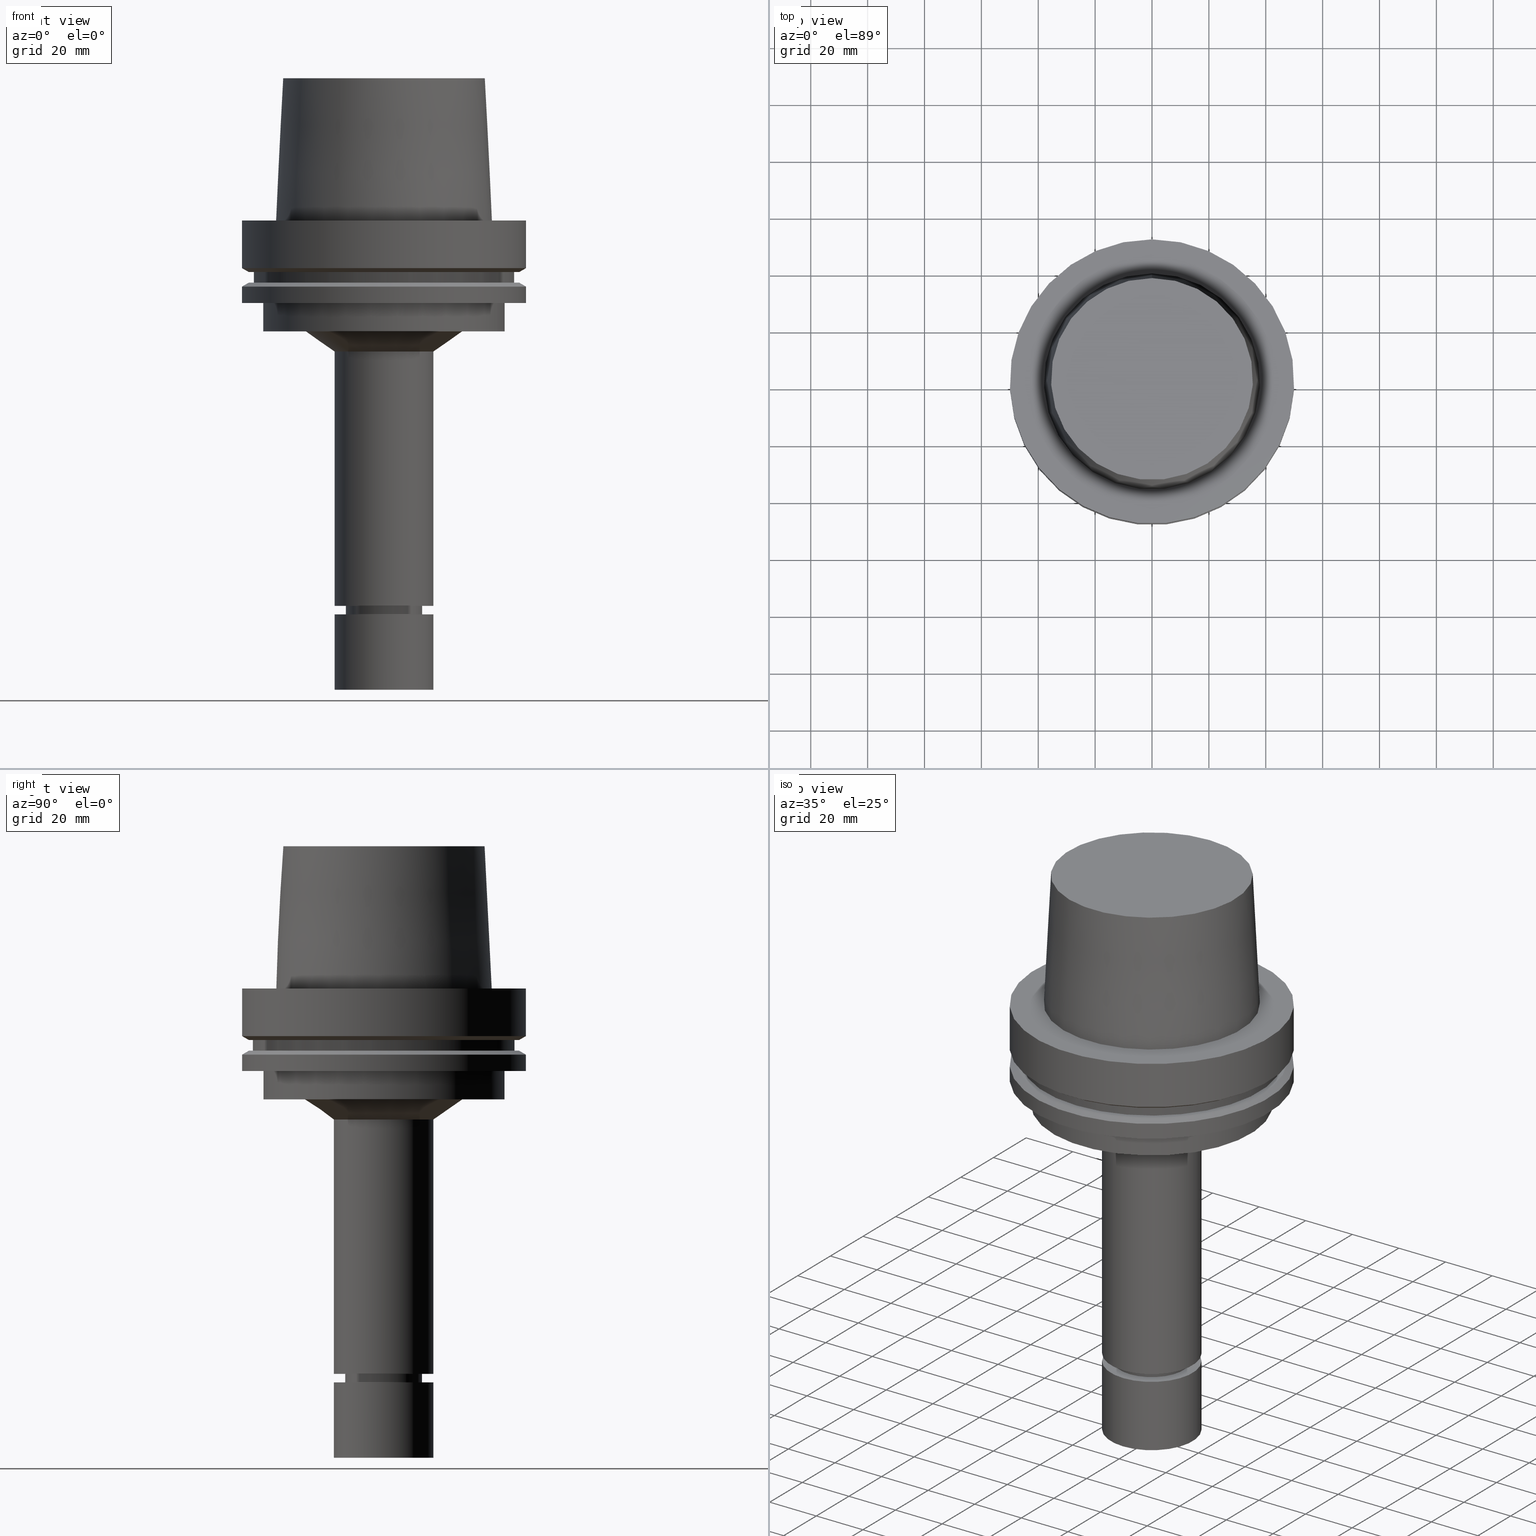
[diagram: canonical four-view strip — front | top / right | iso, engineering-drawing reading convention]
A machine part, canonical four-view strip (front | top / right | iso — engineering-drawing reading convention). The complete STEP part file that produces these views, byte-faithful:
ISO-10303-21;
HEADER;
FILE_DESCRIPTION((''),'1');
FILE_NAME('V:/90_\X2\53D65F9730C730FC30BF\X0\/00_\X2\6DE18DEF30C730FC30BF\X0\/ALL/HSK-BKUS\X2\52A05DE556F3\X0\_201801/HSK-A100-MEGAER/HSK-A100-MEGAER20-165NL.stp','2018-02-01T04:13:18',(''),(''),'Spatial Interop R21 SP3','Kubotek KeyCreator 2011 V10.0.2 (22737)',' ');
FILE_SCHEMA(('automotive_design'));
ENDSEC;
DATA;
#1=MECHANICAL_DESIGN_GEOMETRIC_PRESENTATION_REPRESENTATION(' ',(#14,#15,#16,#17,#18,#19,#20,#21,#22,#23,#24,#25,#26,#27,#28,#29,#30,#31,#32,#33,#34,#35,#36,#37,#38,#39,#40,#41,#42,#43,#44,#45,#46,#47,#48,#49,#50,#51,#52,#53,#54,#55,#56,#57,#58,#59,#60,#61),#10);
#2=PRODUCT_DEFINITION_CONTEXT('',#62,'design');
#3=APPLICATION_PROTOCOL_DEFINITION('INTERNATIONAL STANDARD','automotive_design',1994,#62);
#4=PRODUCT_CATEGORY_RELATIONSHIP('NONE','NONE',#63,#64);
#5=SHAPE_DEFINITION_REPRESENTATION(#65,#66);
#6=PRODUCT_DEFINITION_CONTEXT('',#67,'design');
#7=APPLICATION_PROTOCOL_DEFINITION('INTERNATIONAL STANDARD','automotive_design',1994,#67);
#8=PRODUCT_CATEGORY_RELATIONSHIP('NONE','NONE',#68,#69);
#9=SHAPE_DEFINITION_REPRESENTATION(#70,#71);
#10= (GEOMETRIC_REPRESENTATION_CONTEXT(3)GLOBAL_UNCERTAINTY_ASSIGNED_CONTEXT((#74))GLOBAL_UNIT_ASSIGNED_CONTEXT((#76,#77,#78))REPRESENTATION_CONTEXT('NONE','WORKSPACE'));
#14=STYLED_ITEM('',(#80,#81),#82);
#15=STYLED_ITEM('',(#83),#84);
#16=STYLED_ITEM('',(#85,#86),#87);
#17=STYLED_ITEM('',(#88),#89);
#18=STYLED_ITEM('',(#90,#91),#92);
#19=STYLED_ITEM('',(#93,#94),#95);
#20=STYLED_ITEM('',(#96,#97),#98);
#21=STYLED_ITEM('',(#99,#100),#101);
#22=STYLED_ITEM('',(#102),#103);
#23=STYLED_ITEM('',(#104,#105),#106);
#24=STYLED_ITEM('',(#107),#108);
#25=STYLED_ITEM('',(#109),#110);
#26=STYLED_ITEM('',(#111,#112),#113);
#27=STYLED_ITEM('',(#114),#115);
#28=STYLED_ITEM('',(#116,#117),#118);
#29=STYLED_ITEM('',(#119),#120);
#30=STYLED_ITEM('',(#121),#122);
#31=STYLED_ITEM('',(#123,#124),#125);
#32=STYLED_ITEM('',(#126),#127);
#33=STYLED_ITEM('',(#128,#129),#130);
#34=STYLED_ITEM('',(#131,#132),#133);
#35=STYLED_ITEM('',(#134,#135),#136);
#36=STYLED_ITEM('',(#137),#138);
#37=STYLED_ITEM('',(#139),#140);
#38=STYLED_ITEM('',(#141),#142);
#39=STYLED_ITEM('',(#143,#144),#145);
#40=STYLED_ITEM('',(#146,#147),#148);
#41=STYLED_ITEM('',(#149),#150);
#42=STYLED_ITEM('',(#151),#152);
#43=STYLED_ITEM('',(#153,#154),#155);
#44=STYLED_ITEM('',(#156,#157),#158);
#45=STYLED_ITEM('',(#159),#160);
#46=STYLED_ITEM('',(#161,#162),#163);
#47=STYLED_ITEM('',(#164,#165),#166);
#48=STYLED_ITEM('',(#167),#168);
#49=STYLED_ITEM('',(#169,#170),#171);
#50=STYLED_ITEM('',(#172,#173),#174);
#51=STYLED_ITEM('',(#175),#176);
#52=STYLED_ITEM('',(#177,#178),#179);
#53=STYLED_ITEM('',(#180,#181),#182);
#54=STYLED_ITEM('',(#183,#184),#185);
#55=STYLED_ITEM('',(#186,#187),#188);
#56=STYLED_ITEM('',(#189),#190);
#57=STYLED_ITEM('',(#191),#192);
#58=STYLED_ITEM('',(#193),#194);
#59=STYLED_ITEM('',(#195),#196);
#60=STYLED_ITEM('',(#197,#198),#199);
#61=STYLED_ITEM('',(#200),#201);
#62=APPLICATION_CONTEXT(' ');
#63=PRODUCT_CATEGORY('part','NONE');
#64=PRODUCT_RELATED_PRODUCT_CATEGORY('detail',' ',(#202));
#65=PRODUCT_DEFINITION_SHAPE('NONE','NONE',#203);
#66=ADVANCED_BREP_SHAPE_REPRESENTATION('Unnamed[1]',(#118,#204),#10);
#67=APPLICATION_CONTEXT(' ');
#68=PRODUCT_CATEGORY('part','NONE');
#69=PRODUCT_RELATED_PRODUCT_CATEGORY('detail',' ',(#205));
#70=PRODUCT_DEFINITION_SHAPE('NONE','NONE',#206);
#71=ADVANCED_BREP_SHAPE_REPRESENTATION('Unnamed[1]',(#101,#207),#10);
#74=UNCERTAINTY_MEASURE_WITH_UNIT(LENGTH_MEASURE(1.0E-006),#76,'','');
#76= (CONVERSION_BASED_UNIT('MILLIMETRE',#210)LENGTH_UNIT()NAMED_UNIT(#213));
#77= (NAMED_UNIT(#215)PLANE_ANGLE_UNIT()SI_UNIT($,.RADIAN.));
#78= (NAMED_UNIT(#215)SOLID_ANGLE_UNIT()SI_UNIT($,.STERADIAN.));
#80=PRESENTATION_STYLE_ASSIGNMENT((#221));
#81=PRESENTATION_STYLE_ASSIGNMENT((#222));
#82=ADVANCED_FACE('Unnamed[1]',(#223,#224),#225,.T.);
#83=PRESENTATION_STYLE_ASSIGNMENT((#226));
#84=EDGE_CURVE('Unnamed[1]',#227,#227,#228,.T.);
#85=PRESENTATION_STYLE_ASSIGNMENT((#229));
#86=PRESENTATION_STYLE_ASSIGNMENT((#230));
#87=ADVANCED_FACE('Unnamed[1]',(#231,#232),#233,.T.);
#88=PRESENTATION_STYLE_ASSIGNMENT((#234));
#89=EDGE_CURVE('Unnamed[1]',#235,#235,#236,.T.);
#90=PRESENTATION_STYLE_ASSIGNMENT((#237));
#91=PRESENTATION_STYLE_ASSIGNMENT((#238));
#92=ADVANCED_FACE('Unnamed[1]',(#239,#240),#241,.T.);
#93=PRESENTATION_STYLE_ASSIGNMENT((#242));
#94=PRESENTATION_STYLE_ASSIGNMENT((#243));
#95=ADVANCED_FACE('Unnamed[1]',(#244,#245),#246,.T.);
#96=PRESENTATION_STYLE_ASSIGNMENT((#247));
#97=PRESENTATION_STYLE_ASSIGNMENT((#248));
#98=ADVANCED_FACE('Unnamed[1]',(#249,#250),#251,.T.);
#99=PRESENTATION_STYLE_ASSIGNMENT((#252));
#100=PRESENTATION_STYLE_ASSIGNMENT((#253));
#101=MANIFOLD_SOLID_BREP('Unnamed[1]',#254);
#102=PRESENTATION_STYLE_ASSIGNMENT((#255));
#103=EDGE_CURVE('Unnamed[1]',#256,#256,#257,.T.);
#104=PRESENTATION_STYLE_ASSIGNMENT((#258));
#105=PRESENTATION_STYLE_ASSIGNMENT((#259));
#106=ADVANCED_FACE('Unnamed[1]',(#260,#261),#262,.T.);
#107=PRESENTATION_STYLE_ASSIGNMENT((#263));
#108=EDGE_CURVE('Unnamed[1]',#264,#264,#265,.T.);
#109=PRESENTATION_STYLE_ASSIGNMENT((#266));
#110=EDGE_CURVE('Unnamed[1]',#267,#267,#268,.T.);
#111=PRESENTATION_STYLE_ASSIGNMENT((#269));
#112=PRESENTATION_STYLE_ASSIGNMENT((#270));
#113=ADVANCED_FACE('Unnamed[1]',(#271,#272),#273,.T.);
#114=PRESENTATION_STYLE_ASSIGNMENT((#274));
#115=EDGE_CURVE('Unnamed[1]',#275,#275,#276,.T.);
#116=PRESENTATION_STYLE_ASSIGNMENT((#277));
#117=PRESENTATION_STYLE_ASSIGNMENT((#278));
#118=MANIFOLD_SOLID_BREP('Unnamed[1]',#279);
#119=PRESENTATION_STYLE_ASSIGNMENT((#280));
#120=EDGE_CURVE('Unnamed[1]',#281,#281,#282,.T.);
#121=PRESENTATION_STYLE_ASSIGNMENT((#283));
#122=EDGE_CURVE('Unnamed[1]',#284,#284,#285,.T.);
#123=PRESENTATION_STYLE_ASSIGNMENT((#286));
#124=PRESENTATION_STYLE_ASSIGNMENT((#287));
#125=ADVANCED_FACE('Unnamed[1]',(#288,#289),#290,.T.);
#126=PRESENTATION_STYLE_ASSIGNMENT((#291));
#127=EDGE_CURVE('Unnamed[1]',#292,#292,#293,.T.);
#128=PRESENTATION_STYLE_ASSIGNMENT((#294));
#129=PRESENTATION_STYLE_ASSIGNMENT((#295));
#130=ADVANCED_FACE('Unnamed[1]',(#296,#297),#298,.T.);
#131=PRESENTATION_STYLE_ASSIGNMENT((#299));
#132=PRESENTATION_STYLE_ASSIGNMENT((#300));
#133=ADVANCED_FACE('Unnamed[1]',(#301),#302,.T.);
#134=PRESENTATION_STYLE_ASSIGNMENT((#303));
#135=PRESENTATION_STYLE_ASSIGNMENT((#304));
#136=ADVANCED_FACE('Unnamed[1]',(#305),#306,.T.);
#137=PRESENTATION_STYLE_ASSIGNMENT((#307));
#138=EDGE_CURVE('Unnamed[1]',#308,#308,#309,.T.);
#139=PRESENTATION_STYLE_ASSIGNMENT((#310));
#140=EDGE_CURVE('Unnamed[1]',#311,#311,#312,.T.);
#141=PRESENTATION_STYLE_ASSIGNMENT((#313));
#142=EDGE_CURVE('Unnamed[1]',#314,#314,#315,.T.);
#143=PRESENTATION_STYLE_ASSIGNMENT((#316));
#144=PRESENTATION_STYLE_ASSIGNMENT((#317));
#145=ADVANCED_FACE('Unnamed[1]',(#318),#319,.T.);
#146=PRESENTATION_STYLE_ASSIGNMENT((#320));
#147=PRESENTATION_STYLE_ASSIGNMENT((#321));
#148=ADVANCED_FACE('Unnamed[1]',(#322,#323),#324,.T.);
#149=PRESENTATION_STYLE_ASSIGNMENT((#325));
#150=EDGE_CURVE('Unnamed[1]',#326,#326,#327,.T.);
#151=PRESENTATION_STYLE_ASSIGNMENT((#328));
#152=EDGE_CURVE('Unnamed[1]',#329,#329,#330,.T.);
#153=PRESENTATION_STYLE_ASSIGNMENT((#331));
#154=PRESENTATION_STYLE_ASSIGNMENT((#332));
#155=ADVANCED_FACE('Unnamed[1]',(#333,#334),#335,.T.);
#156=PRESENTATION_STYLE_ASSIGNMENT((#336));
#157=PRESENTATION_STYLE_ASSIGNMENT((#337));
#158=ADVANCED_FACE('Unnamed[1]',(#338,#339),#340,.T.);
#159=PRESENTATION_STYLE_ASSIGNMENT((#341));
#160=EDGE_CURVE('Unnamed[1]',#342,#342,#343,.T.);
#161=PRESENTATION_STYLE_ASSIGNMENT((#344));
#162=PRESENTATION_STYLE_ASSIGNMENT((#345));
#163=ADVANCED_FACE('Unnamed[1]',(#346,#347),#348,.T.);
#164=PRESENTATION_STYLE_ASSIGNMENT((#349));
#165=PRESENTATION_STYLE_ASSIGNMENT((#350));
#166=ADVANCED_FACE('Unnamed[1]',(#351,#352),#353,.T.);
#167=PRESENTATION_STYLE_ASSIGNMENT((#354));
#168=EDGE_CURVE('Unnamed[1]',#355,#355,#356,.T.);
#169=PRESENTATION_STYLE_ASSIGNMENT((#357));
#170=PRESENTATION_STYLE_ASSIGNMENT((#358));
#171=ADVANCED_FACE('Unnamed[1]',(#359,#360),#361,.T.);
#172=PRESENTATION_STYLE_ASSIGNMENT((#362));
#173=PRESENTATION_STYLE_ASSIGNMENT((#363));
#174=ADVANCED_FACE('Unnamed[1]',(#364,#365),#366,.T.);
#175=PRESENTATION_STYLE_ASSIGNMENT((#367));
#176=EDGE_CURVE('Unnamed[1]',#368,#368,#369,.T.);
#177=PRESENTATION_STYLE_ASSIGNMENT((#370));
#178=PRESENTATION_STYLE_ASSIGNMENT((#371));
#179=ADVANCED_FACE('Unnamed[1]',(#372,#373),#374,.T.);
#180=PRESENTATION_STYLE_ASSIGNMENT((#375));
#181=PRESENTATION_STYLE_ASSIGNMENT((#376));
#182=ADVANCED_FACE('Unnamed[1]',(#377,#378),#379,.T.);
#183=PRESENTATION_STYLE_ASSIGNMENT((#380));
#184=PRESENTATION_STYLE_ASSIGNMENT((#381));
#185=ADVANCED_FACE('Unnamed[1]',(#382,#383),#384,.T.);
#186=PRESENTATION_STYLE_ASSIGNMENT((#385));
#187=PRESENTATION_STYLE_ASSIGNMENT((#386));
#188=ADVANCED_FACE('Unnamed[1]',(#387),#388,.T.);
#189=PRESENTATION_STYLE_ASSIGNMENT((#389));
#190=EDGE_CURVE('Unnamed[1]',#390,#390,#391,.T.);
#191=PRESENTATION_STYLE_ASSIGNMENT((#392));
#192=EDGE_CURVE('Unnamed[1]',#393,#393,#394,.T.);
#193=PRESENTATION_STYLE_ASSIGNMENT((#395));
#194=EDGE_CURVE('Unnamed[1]',#396,#396,#397,.T.);
#195=PRESENTATION_STYLE_ASSIGNMENT((#398));
#196=EDGE_CURVE('Unnamed[1]',#399,#399,#400,.T.);
#197=PRESENTATION_STYLE_ASSIGNMENT((#401));
#198=PRESENTATION_STYLE_ASSIGNMENT((#402));
#199=ADVANCED_FACE('Unnamed[1]',(#403,#404),#405,.T.);
#200=PRESENTATION_STYLE_ASSIGNMENT((#406));
#201=EDGE_CURVE('Unnamed[1]',#407,#407,#408,.T.);
#202=PRODUCT('Unnamed[1]','Unnamed[1]','PART-Unnamed[1]-DESC',(#409));
#203=PRODUCT_DEFINITION('NONE','NONE',#410,#2);
#204=AXIS2_PLACEMENT_3D('',#411,#412,#413);
#205=PRODUCT('Unnamed[1]','Unnamed[1]','PART-Unnamed[1]-DESC',(#414));
#206=PRODUCT_DEFINITION('NONE','NONE',#415,#6);
#207=AXIS2_PLACEMENT_3D('',#416,#417,#418);
#210=LENGTH_MEASURE_WITH_UNIT(LENGTH_MEASURE(1.0),#419);
#213=DIMENSIONAL_EXPONENTS(1.0,0.0,0.0,0.0,0.0,0.0,0.0);
#215=DIMENSIONAL_EXPONENTS(0.0,0.0,0.0,0.0,0.0,0.0,0.0);
#221=SURFACE_STYLE_USAGE(.BOTH.,#420);
#222=CURVE_STYLE('',#421,POSITIVE_LENGTH_MEASURE(1000.0),#422);
#223=FACE_BOUND('',#423,.T.);
#224=FACE_BOUND('',#424,.T.);
#225=CONICAL_SURFACE('',#425,48.81129763,1.04719755328238);
#226=CURVE_STYLE('',#426,POSITIVE_LENGTH_MEASURE(1000.0),#427);
#227=VERTEX_POINT('',#428);
#228=CIRCLE('',#429,12.4999999999999);
#229=SURFACE_STYLE_USAGE(.BOTH.,#430);
#230=CURVE_STYLE('',#431,POSITIVE_LENGTH_MEASURE(1000.0),#432);
#231=FACE_BOUND('',#433,.T.);
#232=FACE_OUTER_BOUND('',#434,.T.);
#233=PLANE('',#435);
#234=CURVE_STYLE('',#436,POSITIVE_LENGTH_MEASURE(1000.0),#437);
#235=VERTEX_POINT('',#438);
#236=CIRCLE('',#439,11.3999999999978);
#237=SURFACE_STYLE_USAGE(.BOTH.,#440);
#238=CURVE_STYLE('',#441,POSITIVE_LENGTH_MEASURE(1000.0),#442);
#239=FACE_OUTER_BOUND('',#443,.T.);
#240=FACE_BOUND('',#444,.T.);
#241=PLANE('',#445);
#242=SURFACE_STYLE_USAGE(.BOTH.,#446);
#243=CURVE_STYLE('',#447,POSITIVE_LENGTH_MEASURE(1000.0),#448);
#244=FACE_BOUND('',#449,.T.);
#245=FACE_BOUND('',#450,.T.);
#246=CONICAL_SURFACE('',#451,36.7500000007484,0.0499583956894843);
#247=SURFACE_STYLE_USAGE(.BOTH.,#452);
#248=CURVE_STYLE('',#453,POSITIVE_LENGTH_MEASURE(1000.0),#454);
#249=FACE_BOUND('',#455,.T.);
#250=FACE_BOUND('',#456,.T.);
#251=CONICAL_SURFACE('',#457,22.5717863357236,0.962446965226569);
#252=SURFACE_STYLE_USAGE(.BOTH.,#458);
#253=CURVE_STYLE('',#459,POSITIVE_LENGTH_MEASURE(1000.0),#460);
#254=CLOSED_SHELL('',(#145,#136,#179));
#255=CURVE_STYLE('',#461,POSITIVE_LENGTH_MEASURE(1000.0),#462);
#256=VERTEX_POINT('',#463);
#257=CIRCLE('',#464,12.4999999999998);
#258=SURFACE_STYLE_USAGE(.BOTH.,#465);
#259=CURVE_STYLE('',#466,POSITIVE_LENGTH_MEASURE(1000.0),#467);
#260=FACE_BOUND('',#468,.T.);
#261=FACE_BOUND('',#469,.T.);
#262=CYLINDRICAL_SURFACE('',#470,13.4999999999956);
#263=CURVE_STYLE('',#471,POSITIVE_LENGTH_MEASURE(1000.0),#472);
#264=VERTEX_POINT('',#473);
#265=CIRCLE('',#474,50.0);
#266=CURVE_STYLE('',#475,POSITIVE_LENGTH_MEASURE(1000.0),#476);
#267=VERTEX_POINT('',#477);
#268=CIRCLE('',#478,42.5);
#269=SURFACE_STYLE_USAGE(.BOTH.,#479);
#270=CURVE_STYLE('',#480,POSITIVE_LENGTH_MEASURE(1000.0),#481);
#271=FACE_BOUND('',#482,.T.);
#272=FACE_OUTER_BOUND('',#483,.T.);
#273=PLANE('',#484);
#274=CURVE_STYLE('',#485,POSITIVE_LENGTH_MEASURE(1000.0),#486);
#275=VERTEX_POINT('',#487);
#276=CIRCLE('',#488,50.0);
#277=SURFACE_STYLE_USAGE(.BOTH.,#489);
#278=CURVE_STYLE('',#490,POSITIVE_LENGTH_MEASURE(1000.0),#491);
#279=CLOSED_SHELL('',(#188,#95,#199,#163,#82,#166,#174,#92,#125,#185,#113,#155,#182,#98,#171,#87,#106,#148,#130,#158,#133));
#280=CURVE_STYLE('',#492,POSITIVE_LENGTH_MEASURE(1000.0),#493);
#281=VERTEX_POINT('',#494);
#282=CIRCLE('',#495,17.5);
#283=CURVE_STYLE('',#496,POSITIVE_LENGTH_MEASURE(1000.0),#497);
#284=VERTEX_POINT('',#498);
#285=CIRCLE('',#499,17.4999999999999);
#286=SURFACE_STYLE_USAGE(.BOTH.,#500);
#287=CURVE_STYLE('',#501,POSITIVE_LENGTH_MEASURE(1000.0),#502);
#288=FACE_BOUND('',#503,.T.);
#289=FACE_BOUND('',#504,.T.);
#290=CONICAL_SURFACE('',#505,48.81129763,1.04719755328238);
#291=CURVE_STYLE('',#506,POSITIVE_LENGTH_MEASURE(1000.0),#507);
#292=VERTEX_POINT('',#508);
#293=CIRCLE('',#509,35.5000000015618);
#294=SURFACE_STYLE_USAGE(.BOTH.,#510);
#295=CURVE_STYLE('',#511,POSITIVE_LENGTH_MEASURE(1000.0),#512);
#296=FACE_BOUND('',#513,.T.);
#297=FACE_BOUND('',#514,.T.);
#298=CYLINDRICAL_SURFACE('',#515,12.4999999999999);
#299=SURFACE_STYLE_USAGE(.BOTH.,#516);
#300=CURVE_STYLE('',#517,POSITIVE_LENGTH_MEASURE(1000.0),#518);
#301=FACE_OUTER_BOUND('',#519,.T.);
#302=PLANE('',#520);
#303=SURFACE_STYLE_USAGE(.BOTH.,#521);
#304=CURVE_STYLE('',#522,POSITIVE_LENGTH_MEASURE(1000.0),#523);
#305=FACE_OUTER_BOUND('',#524,.T.);
#306=PLANE('',#525);
#307=CURVE_STYLE('',#526,POSITIVE_LENGTH_MEASURE(1000.0),#527);
#308=VERTEX_POINT('',#528);
#309=CIRCLE('',#529,50.0);
#310=CURVE_STYLE('',#530,POSITIVE_LENGTH_MEASURE(1000.0),#531);
#311=VERTEX_POINT('',#532);
#312=CIRCLE('',#533,42.5);
#313=CURVE_STYLE('',#534,POSITIVE_LENGTH_MEASURE(1000.0),#535);
#314=VERTEX_POINT('',#536);
#315=CIRCLE('',#537,13.4999999999908);
#316=SURFACE_STYLE_USAGE(.BOTH.,#538);
#317=CURVE_STYLE('',#539,POSITIVE_LENGTH_MEASURE(1000.0),#540);
#318=FACE_OUTER_BOUND('',#541,.T.);
#319=PLANE('',#542);
#320=SURFACE_STYLE_USAGE(.BOTH.,#543);
#321=CURVE_STYLE('',#544,POSITIVE_LENGTH_MEASURE(1000.0),#545);
#322=FACE_BOUND('',#546,.T.);
#323=FACE_BOUND('',#547,.T.);
#324=CONICAL_SURFACE('',#548,13.0000000000002,1.04719755119471);
#325=CURVE_STYLE('',#549,POSITIVE_LENGTH_MEASURE(1000.0),#550);
#326=VERTEX_POINT('',#551);
#327=CIRCLE('',#552,13.5000000000005);
#328=CURVE_STYLE('',#553,POSITIVE_LENGTH_MEASURE(1000.0),#554);
#329=VERTEX_POINT('',#555);
#330=CIRCLE('',#556,17.5);
#331=SURFACE_STYLE_USAGE(.BOTH.,#557);
#332=CURVE_STYLE('',#558,POSITIVE_LENGTH_MEASURE(1000.0),#559);
#333=FACE_BOUND('',#560,.T.);
#334=FACE_BOUND('',#561,.T.);
#335=CYLINDRICAL_SURFACE('',#562,42.5);
#336=SURFACE_STYLE_USAGE(.BOTH.,#563);
#337=CURVE_STYLE('',#564,POSITIVE_LENGTH_MEASURE(1000.0),#565);
#338=FACE_BOUND('',#566,.T.);
#339=FACE_BOUND('',#567,.T.);
#340=CONICAL_SURFACE('',#568,11.9499999999988,0.523598775598652);
#341=CURVE_STYLE('',#569,POSITIVE_LENGTH_MEASURE(1000.0),#570);
#342=VERTEX_POINT('',#571);
#343=CIRCLE('',#572,47.62259526);
#344=SURFACE_STYLE_USAGE(.BOTH.,#573);
#345=CURVE_STYLE('',#574,POSITIVE_LENGTH_MEASURE(1000.0),#575);
#346=FACE_BOUND('',#576,.T.);
#347=FACE_BOUND('',#577,.T.);
#348=CYLINDRICAL_SURFACE('',#578,50.0);
#349=SURFACE_STYLE_USAGE(.BOTH.,#579);
#350=CURVE_STYLE('',#580,POSITIVE_LENGTH_MEASURE(1000.0),#581);
#351=FACE_BOUND('',#582,.T.);
#352=FACE_OUTER_BOUND('',#583,.T.);
#353=PLANE('',#584);
#354=CURVE_STYLE('',#585,POSITIVE_LENGTH_MEASURE(1000.0),#586);
#355=VERTEX_POINT('',#587);
#356=CIRCLE('',#588,46.0);
#357=SURFACE_STYLE_USAGE(.BOTH.,#589);
#358=CURVE_STYLE('',#590,POSITIVE_LENGTH_MEASURE(1000.0),#591);
#359=FACE_BOUND('',#592,.T.);
#360=FACE_BOUND('',#593,.T.);
#361=CYLINDRICAL_SURFACE('',#594,17.4999999999963);
#362=SURFACE_STYLE_USAGE(.BOTH.,#595);
#363=CURVE_STYLE('',#596,POSITIVE_LENGTH_MEASURE(1000.0),#597);
#364=FACE_BOUND('',#598,.T.);
#365=FACE_BOUND('',#599,.T.);
#366=CYLINDRICAL_SURFACE('',#600,46.0);
#367=CURVE_STYLE('',#601,POSITIVE_LENGTH_MEASURE(1000.0),#602);
#368=VERTEX_POINT('',#603);
#369=CIRCLE('',#604,17.4999999999926);
#370=SURFACE_STYLE_USAGE(.BOTH.,#605);
#371=CURVE_STYLE('',#606,POSITIVE_LENGTH_MEASURE(1000.0),#607);
#372=FACE_BOUND('',#608,.T.);
#373=FACE_BOUND('',#609,.T.);
#374=CYLINDRICAL_SURFACE('',#610,17.5);
#375=SURFACE_STYLE_USAGE(.BOTH.,#611);
#376=CURVE_STYLE('',#612,POSITIVE_LENGTH_MEASURE(1000.0),#613);
#377=FACE_BOUND('',#614,.T.);
#378=FACE_OUTER_BOUND('',#615,.T.);
#379=PLANE('',#616);
#380=SURFACE_STYLE_USAGE(.BOTH.,#617);
#381=CURVE_STYLE('',#618,POSITIVE_LENGTH_MEASURE(1000.0),#619);
#382=FACE_BOUND('',#620,.T.);
#383=FACE_BOUND('',#621,.T.);
#384=CYLINDRICAL_SURFACE('',#622,50.0);
#385=SURFACE_STYLE_USAGE(.BOTH.,#623);
#386=CURVE_STYLE('',#624,POSITIVE_LENGTH_MEASURE(1000.0),#625);
#387=FACE_OUTER_BOUND('',#626,.T.);
#388=PLANE('',#627);
#389=CURVE_STYLE('',#628,POSITIVE_LENGTH_MEASURE(1000.0),#629);
#390=VERTEX_POINT('',#630);
#391=CIRCLE('',#631,37.9999999999349);
#392=CURVE_STYLE('',#632,POSITIVE_LENGTH_MEASURE(1000.0),#633);
#393=VERTEX_POINT('',#634);
#394=CIRCLE('',#635,50.0);
#395=CURVE_STYLE('',#636,POSITIVE_LENGTH_MEASURE(1000.0),#637);
#396=VERTEX_POINT('',#638);
#397=CIRCLE('',#639,46.0);
#398=CURVE_STYLE('',#640,POSITIVE_LENGTH_MEASURE(1000.0),#641);
#399=VERTEX_POINT('',#642);
#400=CIRCLE('',#643,47.62259526);
#401=SURFACE_STYLE_USAGE(.BOTH.,#644);
#402=CURVE_STYLE('',#645,POSITIVE_LENGTH_MEASURE(1000.0),#646);
#403=FACE_OUTER_BOUND('',#647,.T.);
#404=FACE_BOUND('',#648,.T.);
#405=PLANE('',#649);
#406=CURVE_STYLE('',#650,POSITIVE_LENGTH_MEASURE(1000.0),#651);
#407=VERTEX_POINT('',#652);
#408=CIRCLE('',#653,27.6435726714545);
#409=PRODUCT_CONTEXT('',#62,'mechanical');
#410=PRODUCT_DEFINITION_FORMATION_WITH_SPECIFIED_SOURCE(' ','NONE',#202,.NOT_KNOWN.);
#411=CARTESIAN_POINT('',(0.0,0.0,0.0));
#412=DIRECTION('',(0.0,0.0,1.0));
#413=DIRECTION('',(1.0,0.0,0.0));
#414=PRODUCT_CONTEXT('',#67,'mechanical');
#415=PRODUCT_DEFINITION_FORMATION_WITH_SPECIFIED_SOURCE(' ','NONE',#205,.NOT_KNOWN.);
#416=CARTESIAN_POINT('',(0.0,0.0,0.0));
#417=DIRECTION('',(0.0,0.0,1.0));
#418=DIRECTION('',(1.0,0.0,0.0));
#419= (NAMED_UNIT(#213)LENGTH_UNIT()SI_UNIT(.MILLI.,.METRE.));
#420=SURFACE_SIDE_STYLE('',(#655));
#421=DRAUGHTING_PRE_DEFINED_CURVE_FONT('continuous');
#422=COLOUR_RGB('',0.0,1.0,0.0);
#423=EDGE_LOOP('',(#656));
#424=EDGE_LOOP('',(#657));
#425=AXIS2_PLACEMENT_3D('',#658,#659,#660);
#426=DRAUGHTING_PRE_DEFINED_CURVE_FONT('continuous');
#427=COLOUR_RGB('',0.0,1.0,0.0);
#428=CARTESIAN_POINT('',(8.68884914768171E-015,12.4999999999999,-141.899675134598));
#429=AXIS2_PLACEMENT_3D('',#661,#662,#663);
#430=SURFACE_SIDE_STYLE('',(#664));
#431=DRAUGHTING_PRE_DEFINED_CURVE_FONT('continuous');
#432=COLOUR_RGB('',0.0,1.0,0.0);
#433=EDGE_LOOP('',(#665));
#434=EDGE_LOOP('',(#666));
#435=AXIS2_PLACEMENT_3D('',#667,#668,#669);
#436=DRAUGHTING_PRE_DEFINED_CURVE_FONT('continuous');
#437=COLOUR_RGB('',0.0,1.0,0.0);
#438=CARTESIAN_POINT('',(9.50325916138347E-015,11.3999999999978,-155.2));
#439=AXIS2_PLACEMENT_3D('',#670,#671,#672);
#440=SURFACE_SIDE_STYLE('',(#673));
#441=DRAUGHTING_PRE_DEFINED_CURVE_FONT('continuous');
#442=COLOUR_RGB('',0.0,1.0,0.0);
#443=EDGE_LOOP('',(#674));
#444=EDGE_LOOP('',(#675));
#445=AXIS2_PLACEMENT_3D('',#676,#677,#678);
#446=SURFACE_SIDE_STYLE('',(#679));
#447=DRAUGHTING_PRE_DEFINED_CURVE_FONT('continuous');
#448=COLOUR_RGB('',0.0,1.0,0.0);
#449=EDGE_LOOP('',(#680));
#450=EDGE_LOOP('',(#681));
#451=AXIS2_PLACEMENT_3D('',#682,#683,#684);
#452=SURFACE_SIDE_STYLE('',(#685));
#453=DRAUGHTING_PRE_DEFINED_CURVE_FONT('continuous');
#454=COLOUR_RGB('',0.0,1.0,0.0);
#455=EDGE_LOOP('',(#686));
#456=EDGE_LOOP('',(#687));
#457=AXIS2_PLACEMENT_3D('',#688,#689,#690);
#458=SURFACE_SIDE_STYLE('',(#691));
#459=DRAUGHTING_PRE_DEFINED_CURVE_FONT('continuous');
#460=COLOUR_RGB('',0.0,1.0,0.0);
#461=DRAUGHTING_PRE_DEFINED_CURVE_FONT('continuous');
#462=COLOUR_RGB('',0.0,1.0,0.0);
#463=CARTESIAN_POINT('',(9.38659588512362E-015,12.4999999999998,-153.294744111673));
#464=AXIS2_PLACEMENT_3D('',#692,#693,#694);
#465=SURFACE_SIDE_STYLE('',(#695));
#466=DRAUGHTING_PRE_DEFINED_CURVE_FONT('continuous');
#467=COLOUR_RGB('',0.0,1.0,0.0);
#468=EDGE_LOOP('',(#696));
#469=EDGE_LOOP('',(#697));
#470=AXIS2_PLACEMENT_3D('',#698,#699,#700);
#471=DRAUGHTING_PRE_DEFINED_CURVE_FONT('continuous');
#472=COLOUR_RGB('',0.0,1.0,0.0);
#473=CARTESIAN_POINT('',(1.42350465615161E-015,50.0,-23.24759526));
#474=AXIS2_PLACEMENT_3D('',#701,#702,#703);
#475=DRAUGHTING_PRE_DEFINED_CURVE_FONT('continuous');
#476=COLOUR_RGB('',0.0,1.0,0.0);
#477=CARTESIAN_POINT('',(2.38806125833734E-015,42.5,-39.0));
#478=AXIS2_PLACEMENT_3D('',#704,#705,#706);
#479=SURFACE_SIDE_STYLE('',(#707));
#480=DRAUGHTING_PRE_DEFINED_CURVE_FONT('continuous');
#481=COLOUR_RGB('',0.0,1.0,0.0);
#482=EDGE_LOOP('',(#708));
#483=EDGE_LOOP('',(#709));
#484=AXIS2_PLACEMENT_3D('',#710,#711,#712);
#485=DRAUGHTING_PRE_DEFINED_CURVE_FONT('continuous');
#486=COLOUR_RGB('',0.0,1.0,0.0);
#487=CARTESIAN_POINT('',(1.77573785876366E-015,50.0,-29.0));
#488=AXIS2_PLACEMENT_3D('',#713,#714,#715);
#489=SURFACE_SIDE_STYLE('',(#716));
#490=DRAUGHTING_PRE_DEFINED_CURVE_FONT('continuous');
#491=COLOUR_RGB('',0.0,1.0,0.0);
#492=DRAUGHTING_PRE_DEFINED_CURVE_FONT('continuous');
#493=COLOUR_RGB('',0.0,1.0,0.0);
#494=CARTESIAN_POINT('',(1.01033360929657E-014,17.5,-165.0));
#495=AXIS2_PLACEMENT_3D('',#717,#718,#719);
#496=DRAUGHTING_PRE_DEFINED_CURVE_FONT('continuous');
#497=COLOUR_RGB('',0.0,1.0,0.0);
#498=CARTESIAN_POINT('',(8.29698206422331E-015,17.4999999999999,-135.5));
#499=AXIS2_PLACEMENT_3D('',#720,#721,#722);
#500=SURFACE_SIDE_STYLE('',(#723));
#501=DRAUGHTING_PRE_DEFINED_CURVE_FONT('continuous');
#502=COLOUR_RGB('',0.0,1.0,0.0);
#503=EDGE_LOOP('',(#724));
#504=EDGE_LOOP('',(#725));
#505=AXIS2_PLACEMENT_3D('',#726,#727,#728);
#506=DRAUGHTING_PRE_DEFINED_CURVE_FONT('continuous');
#507=COLOUR_RGB('',0.0,1.0,0.0);
#508=CARTESIAN_POINT('',(-3.06161699786838E-015,35.5000000015618,50.0));
#509=AXIS2_PLACEMENT_3D('',#729,#730,#731);
#510=SURFACE_SIDE_STYLE('',(#732));
#511=DRAUGHTING_PRE_DEFINED_CURVE_FONT('continuous');
#512=COLOUR_RGB('',0.0,1.0,0.0);
#513=EDGE_LOOP('',(#733));
#514=EDGE_LOOP('',(#734));
#515=AXIS2_PLACEMENT_3D('',#735,#736,#737);
#516=SURFACE_SIDE_STYLE('',(#738));
#517=DRAUGHTING_PRE_DEFINED_CURVE_FONT('continuous');
#518=COLOUR_RGB('',0.0,1.0,0.0);
#519=EDGE_LOOP('',(#739));
#520=AXIS2_PLACEMENT_3D('',#740,#741,#742);
#521=SURFACE_SIDE_STYLE('',(#743));
#522=DRAUGHTING_PRE_DEFINED_CURVE_FONT('continuous');
#523=COLOUR_RGB('',0.0,1.0,0.0);
#524=EDGE_LOOP('',(#744));
#525=AXIS2_PLACEMENT_3D('',#745,#746,#747);
#526=DRAUGHTING_PRE_DEFINED_CURVE_FONT('continuous');
#527=COLOUR_RGB('',0.0,1.0,0.0);
#528=CARTESIAN_POINT('',(1.0257889421431E-015,50.0,-16.75240474));
#529=AXIS2_PLACEMENT_3D('',#748,#749,#750);
#530=DRAUGHTING_PRE_DEFINED_CURVE_FONT('continuous');
#531=COLOUR_RGB('',0.0,1.0,0.0);
#532=CARTESIAN_POINT('',(1.77573785876366E-015,42.5,-29.0));
#533=AXIS2_PLACEMENT_3D('',#751,#752,#753);
#534=DRAUGHTING_PRE_DEFINED_CURVE_FONT('continuous');
#535=COLOUR_RGB('',0.0,1.0,0.0);
#536=CARTESIAN_POINT('',(8.29698206422331E-015,13.4999999999908,-135.5));
#537=AXIS2_PLACEMENT_3D('',#754,#755,#756);
#538=SURFACE_SIDE_STYLE('',(#757));
#539=DRAUGHTING_PRE_DEFINED_CURVE_FONT('continuous');
#540=COLOUR_RGB('',0.0,1.0,0.0);
#541=EDGE_LOOP('',(#758));
#542=AXIS2_PLACEMENT_3D('',#759,#760,#761);
#543=SURFACE_SIDE_STYLE('',(#762));
#544=DRAUGHTING_PRE_DEFINED_CURVE_FONT('continuous');
#545=COLOUR_RGB('',0.0,1.0,0.0);
#546=EDGE_LOOP('',(#763));
#547=EDGE_LOOP('',(#764));
#548=AXIS2_PLACEMENT_3D('',#765,#766,#767);
#549=DRAUGHTING_PRE_DEFINED_CURVE_FONT('continuous');
#550=COLOUR_RGB('',0.0,1.0,0.0);
#551=CARTESIAN_POINT('',(8.65349663972404E-015,13.5000000000005,-141.322324865405));
#552=AXIS2_PLACEMENT_3D('',#768,#769,#770);
#553=DRAUGHTING_PRE_DEFINED_CURVE_FONT('continuous');
#554=COLOUR_RGB('',0.0,1.0,0.0);
#555=CARTESIAN_POINT('',(8.48068001842678E-015,17.5,-138.500015258789));
#556=AXIS2_PLACEMENT_3D('',#771,#772,#773);
#557=SURFACE_SIDE_STYLE('',(#774));
#558=DRAUGHTING_PRE_DEFINED_CURVE_FONT('continuous');
#559=COLOUR_RGB('',0.0,1.0,0.0);
#560=EDGE_LOOP('',(#775));
#561=EDGE_LOOP('',(#776));
#562=AXIS2_PLACEMENT_3D('',#777,#778,#779);
#563=SURFACE_SIDE_STYLE('',(#780));
#564=DRAUGHTING_PRE_DEFINED_CURVE_FONT('continuous');
#565=COLOUR_RGB('',0.0,1.0,0.0);
#566=EDGE_LOOP('',(#781));
#567=EDGE_LOOP('',(#782));
#568=AXIS2_PLACEMENT_3D('',#783,#784,#785);
#569=DRAUGHTING_PRE_DEFINED_CURVE_FONT('continuous');
#570=COLOUR_RGB('',0.0,1.0,0.0);
#571=CARTESIAN_POINT('',(1.10983616172729E-015,47.62259526,-18.125));
#572=AXIS2_PLACEMENT_3D('',#786,#787,#788);
#573=SURFACE_SIDE_STYLE('',(#789));
#574=DRAUGHTING_PRE_DEFINED_CURVE_FONT('continuous');
#575=COLOUR_RGB('',0.0,1.0,0.0);
#576=EDGE_LOOP('',(#790));
#577=EDGE_LOOP('',(#791));
#578=AXIS2_PLACEMENT_3D('',#792,#793,#794);
#579=SURFACE_SIDE_STYLE('',(#795));
#580=DRAUGHTING_PRE_DEFINED_CURVE_FONT('continuous');
#581=COLOUR_RGB('',0.0,1.0,0.0);
#582=EDGE_LOOP('',(#796));
#583=EDGE_LOOP('',(#797));
#584=AXIS2_PLACEMENT_3D('',#798,#799,#800);
#585=DRAUGHTING_PRE_DEFINED_CURVE_FONT('continuous');
#586=COLOUR_RGB('',0.0,1.0,0.0);
#587=CARTESIAN_POINT('',(1.33945743656742E-015,46.0,-21.875));
#588=AXIS2_PLACEMENT_3D('',#801,#802,#803);
#589=SURFACE_SIDE_STYLE('',(#804));
#590=DRAUGHTING_PRE_DEFINED_CURVE_FONT('continuous');
#591=COLOUR_RGB('',0.0,1.0,0.0);
#592=EDGE_LOOP('',(#805));
#593=EDGE_LOOP('',(#806));
#594=AXIS2_PLACEMENT_3D('',#807,#808,#809);
#595=SURFACE_SIDE_STYLE('',(#810));
#596=DRAUGHTING_PRE_DEFINED_CURVE_FONT('continuous');
#597=COLOUR_RGB('',0.0,1.0,0.0);
#598=EDGE_LOOP('',(#811));
#599=EDGE_LOOP('',(#812));
#600=AXIS2_PLACEMENT_3D('',#813,#814,#815);
#601=DRAUGHTING_PRE_DEFINED_CURVE_FONT('continuous');
#602=COLOUR_RGB('',0.0,1.0,0.0);
#603=CARTESIAN_POINT('',(2.82064573737402E-015,17.4999999999926,-46.0646406676254));
#604=AXIS2_PLACEMENT_3D('',#816,#817,#818);
#605=SURFACE_SIDE_STYLE('',(#819));
#606=DRAUGHTING_PRE_DEFINED_CURVE_FONT('continuous');
#607=COLOUR_RGB('',0.0,1.0,0.0);
#608=EDGE_LOOP('',(#820));
#609=EDGE_LOOP('',(#821));
#610=AXIS2_PLACEMENT_3D('',#822,#823,#824);
#611=SURFACE_SIDE_STYLE('',(#825));
#612=DRAUGHTING_PRE_DEFINED_CURVE_FONT('continuous');
#613=COLOUR_RGB('',0.0,1.0,0.0);
#614=EDGE_LOOP('',(#826));
#615=EDGE_LOOP('',(#827));
#616=AXIS2_PLACEMENT_3D('',#828,#829,#830);
#617=SURFACE_SIDE_STYLE('',(#831));
#618=DRAUGHTING_PRE_DEFINED_CURVE_FONT('continuous');
#619=COLOUR_RGB('',0.0,1.0,0.0);
#620=EDGE_LOOP('',(#832));
#621=EDGE_LOOP('',(#833));
#622=AXIS2_PLACEMENT_3D('',#834,#835,#836);
#623=SURFACE_SIDE_STYLE('',(#837));
#624=DRAUGHTING_PRE_DEFINED_CURVE_FONT('continuous');
#625=COLOUR_RGB('',0.0,1.0,0.0);
#626=EDGE_LOOP('',(#838));
#627=AXIS2_PLACEMENT_3D('',#839,#840,#841);
#628=DRAUGHTING_PRE_DEFINED_CURVE_FONT('continuous');
#629=COLOUR_RGB('',0.0,1.0,0.0);
#630=CARTESIAN_POINT('',(-3.3636548776863E-032,37.9999999999349,-2.44634216324803E-015));
#631=AXIS2_PLACEMENT_3D('',#842,#843,#844);
#632=DRAUGHTING_PRE_DEFINED_CURVE_FONT('continuous');
#633=COLOUR_RGB('',0.0,1.0,0.0);
#634=CARTESIAN_POINT('',(-1.81547968506605E-031,50.0,-9.76766004263236E-016));
#635=AXIS2_PLACEMENT_3D('',#845,#846,#847);
#636=DRAUGHTING_PRE_DEFINED_CURVE_FONT('continuous');
#637=COLOUR_RGB('',0.0,1.0,0.0);
#638=CARTESIAN_POINT('',(1.10983616172729E-015,46.0,-18.125));
#639=AXIS2_PLACEMENT_3D('',#848,#849,#850);
#640=DRAUGHTING_PRE_DEFINED_CURVE_FONT('continuous');
#641=COLOUR_RGB('',0.0,1.0,0.0);
#642=CARTESIAN_POINT('',(1.33945743656742E-015,47.62259526,-21.875));
#643=AXIS2_PLACEMENT_3D('',#851,#852,#853);
#644=SURFACE_SIDE_STYLE('',(#854));
#645=DRAUGHTING_PRE_DEFINED_CURVE_FONT('continuous');
#646=COLOUR_RGB('',0.0,1.0,0.0);
#647=EDGE_LOOP('',(#855));
#648=EDGE_LOOP('',(#856));
#649=AXIS2_PLACEMENT_3D('',#857,#858,#859);
#650=DRAUGHTING_PRE_DEFINED_CURVE_FONT('continuous');
#651=COLOUR_RGB('',0.0,1.0,0.0);
#652=CARTESIAN_POINT('',(2.38806125833734E-015,27.6435726714545,-39.0));
#653=AXIS2_PLACEMENT_3D('',#860,#861,#862);
#655=SURFACE_STYLE_FILL_AREA(#863);
#656=ORIENTED_EDGE('',*,*,#160,.F.);
#657=ORIENTED_EDGE('',*,*,#138,.T.);
#658=CARTESIAN_POINT('',(1.06781255193519E-015,2.13562510387038E-015,-17.43870237));
#659=DIRECTION('',(-6.12323399573677E-017,-1.22464679914735E-016,1.0));
#660=DIRECTION('',(-1.23259516440783E-032,1.0,1.22464679914735E-016));
#661=CARTESIAN_POINT('',(8.68884914768171E-015,1.73776982953634E-014,-141.899675134598));
#662=DIRECTION('',(6.12323399573677E-017,1.22464679914735E-016,-1.0));
#663=DIRECTION('',(-1.23259516440783E-032,1.0,1.22464679914735E-016));
#664=SURFACE_STYLE_FILL_AREA(#864);
#665=ORIENTED_EDGE('',*,*,#142,.F.);
#666=ORIENTED_EDGE('',*,*,#122,.T.);
#667=CARTESIAN_POINT('',(8.29698206422331E-015,15.4999999999954,-135.5));
#668=DIRECTION('',(6.12323399573677E-017,1.22464679914735E-016,-1.0));
#669=DIRECTION('',(-1.23259516440783E-032,1.0,1.22464679914735E-016));
#670=CARTESIAN_POINT('',(9.50325916138347E-015,1.90065183227669E-014,-155.2));
#671=DIRECTION('',(6.12323399573677E-017,1.22464679914735E-016,-1.0));
#672=DIRECTION('',(-1.23259516440783E-032,1.0,1.22464679914735E-016));
#673=SURFACE_STYLE_FILL_AREA(#865);
#674=ORIENTED_EDGE('',*,*,#196,.F.);
#675=ORIENTED_EDGE('',*,*,#168,.T.);
#676=CARTESIAN_POINT('',(1.33945743656742E-015,46.81129763,-21.875));
#677=DIRECTION('',(-6.12323399573677E-017,-1.22464679914735E-016,1.0));
#678=DIRECTION('',(1.23259516440783E-032,-1.0,-1.22464679914735E-016));
#679=SURFACE_STYLE_FILL_AREA(#866);
#680=ORIENTED_EDGE('',*,*,#190,.F.);
#681=ORIENTED_EDGE('',*,*,#127,.T.);
#682=CARTESIAN_POINT('',(-1.53080849893419E-015,-3.06161699786838E-015,25.0));
#683=DIRECTION('',(6.12323399573676E-017,1.22464679914735E-016,-1.0));
#684=DIRECTION('',(-1.23259516440783E-032,1.0,1.22464679914735E-016));
#685=SURFACE_STYLE_FILL_AREA(#867);
#686=ORIENTED_EDGE('',*,*,#176,.F.);
#687=ORIENTED_EDGE('',*,*,#201,.T.);
#688=CARTESIAN_POINT('',(2.60435349785568E-015,5.20870699571136E-015,-42.5323203338127));
#689=DIRECTION('',(-6.12323399573677E-017,-1.22464679914735E-016,1.0));
#690=DIRECTION('',(-1.23259516440783E-032,1.0,1.22464679914735E-016));
#691=SURFACE_STYLE_FILL_AREA(#868);
#692=CARTESIAN_POINT('',(9.38659588512362E-015,1.87731917702472E-014,-153.294744111673));
#693=DIRECTION('',(6.12323399573677E-017,1.22464679914735E-016,-1.0));
#694=DIRECTION('',(-1.23259516440783E-032,1.0,1.22464679914735E-016));
#695=SURFACE_STYLE_FILL_AREA(#869);
#696=ORIENTED_EDGE('',*,*,#150,.F.);
#697=ORIENTED_EDGE('',*,*,#142,.T.);
#698=CARTESIAN_POINT('',(8.47523935197367E-015,1.69504787039473E-014,-138.411162432702));
#699=DIRECTION('',(6.12323399573677E-017,1.22464679914735E-016,-1.0));
#700=DIRECTION('',(-1.23259516440783E-032,1.0,1.22464679914735E-016));
#701=CARTESIAN_POINT('',(1.42350465615161E-015,2.84700931230322E-015,-23.24759526));
#702=DIRECTION('',(6.12323399573677E-017,1.22464679914735E-016,-1.0));
#703=DIRECTION('',(-1.23259516440783E-032,1.0,1.22464679914735E-016));
#704=CARTESIAN_POINT('',(2.38806125833734E-015,4.77612251667468E-015,-39.0));
#705=DIRECTION('',(6.12323399573677E-017,1.22464679914735E-016,-1.0));
#706=DIRECTION('',(-1.23259516440783E-032,1.0,1.22464679914735E-016));
#707=SURFACE_STYLE_FILL_AREA(#870);
#708=ORIENTED_EDGE('',*,*,#140,.F.);
#709=ORIENTED_EDGE('',*,*,#115,.T.);
#710=CARTESIAN_POINT('',(1.77573785876366E-015,46.25,-29.0));
#711=DIRECTION('',(6.12323399573677E-017,1.22464679914735E-016,-1.0));
#712=DIRECTION('',(-1.23259516440783E-032,1.0,1.22464679914735E-016));
#713=CARTESIAN_POINT('',(1.77573785876366E-015,3.55147571752733E-015,-29.0));
#714=DIRECTION('',(6.12323399573677E-017,1.22464679914735E-016,-1.0));
#715=DIRECTION('',(-1.23259516440783E-032,1.0,1.22464679914735E-016));
#716=SURFACE_STYLE_FILL_AREA(#871);
#717=CARTESIAN_POINT('',(1.01033360929657E-014,2.02066721859313E-014,-165.0));
#718=DIRECTION('',(6.12323399573677E-017,1.22464679914735E-016,-1.0));
#719=DIRECTION('',(-1.23259516440783E-032,1.0,1.22464679914735E-016));
#720=CARTESIAN_POINT('',(8.29698206422331E-015,1.65939641284466E-014,-135.5));
#721=DIRECTION('',(6.12323399573677E-017,1.22464679914735E-016,-1.0));
#722=DIRECTION('',(-1.23259516440783E-032,1.0,1.22464679914735E-016));
#723=SURFACE_STYLE_FILL_AREA(#872);
#724=ORIENTED_EDGE('',*,*,#108,.F.);
#725=ORIENTED_EDGE('',*,*,#196,.T.);
#726=CARTESIAN_POINT('',(1.38148104635951E-015,2.76296209271903E-015,-22.56129763));
#727=DIRECTION('',(6.12323399573677E-017,1.22464679914735E-016,-1.0));
#728=DIRECTION('',(-1.23259516440783E-032,1.0,1.22464679914735E-016));
#729=CARTESIAN_POINT('',(-3.06161699786838E-015,-6.12323399573676E-015,50.0));
#730=DIRECTION('',(6.12323399573677E-017,1.22464679914735E-016,-1.0));
#731=DIRECTION('',(-1.23259516440783E-032,1.0,1.22464679914735E-016));
#732=SURFACE_STYLE_FILL_AREA(#873);
#733=ORIENTED_EDGE('',*,*,#103,.F.);
#734=ORIENTED_EDGE('',*,*,#84,.T.);
#735=CARTESIAN_POINT('',(9.03772251640266E-015,1.80754450328053E-014,-147.597209623135));
#736=DIRECTION('',(6.12323399573677E-017,1.22464679914735E-016,-1.0));
#737=DIRECTION('',(-1.23259516440783E-032,1.0,1.22464679914735E-016));
#738=SURFACE_STYLE_FILL_AREA(#874);
#739=ORIENTED_EDGE('',*,*,#89,.T.);
#740=CARTESIAN_POINT('',(9.50325916138347E-015,5.69999999999892,-155.2));
#741=DIRECTION('',(6.12323399573677E-017,-1.23431973509666E-014,-1.0));
#742=DIRECTION('',(7.50975703624499E-031,1.0,-1.23431973509666E-014));
#743=SURFACE_STYLE_FILL_AREA(#875);
#744=ORIENTED_EDGE('',*,*,#152,.F.);
#745=CARTESIAN_POINT('',(8.48068001842678E-015,8.75000000000002,-138.500015258789));
#746=DIRECTION('',(-6.12323399573677E-017,-1.22464679914735E-016,1.0));
#747=DIRECTION('',(1.23259516440783E-032,-1.0,-1.22464679914735E-016));
#748=CARTESIAN_POINT('',(1.0257889421431E-015,2.05157788428619E-015,-16.75240474));
#749=DIRECTION('',(6.12323399573677E-017,1.22464679914735E-016,-1.0));
#750=DIRECTION('',(-1.23259516440783E-032,1.0,1.22464679914735E-016));
#751=CARTESIAN_POINT('',(1.77573785876366E-015,3.55147571752733E-015,-29.0));
#752=DIRECTION('',(6.12323399573677E-017,1.22464679914735E-016,-1.0));
#753=DIRECTION('',(-1.23259516440783E-032,1.0,1.22464679914735E-016));
#754=CARTESIAN_POINT('',(8.29698206422331E-015,1.65939641284466E-014,-135.5));
#755=DIRECTION('',(6.12323399573677E-017,1.22464679914735E-016,-1.0));
#756=DIRECTION('',(-1.23259516440783E-032,1.0,1.22464679914735E-016));
#757=SURFACE_STYLE_FILL_AREA(#876);
#758=ORIENTED_EDGE('',*,*,#120,.T.);
#759=CARTESIAN_POINT('',(1.01033360929657E-014,8.75000000000002,-165.0));
#760=DIRECTION('',(6.12323399573677E-017,1.22464679914735E-016,-1.0));
#761=DIRECTION('',(-1.23259516440783E-032,1.0,1.22464679914735E-016));
#762=SURFACE_STYLE_FILL_AREA(#877);
#763=ORIENTED_EDGE('',*,*,#84,.F.);
#764=ORIENTED_EDGE('',*,*,#150,.T.);
#765=CARTESIAN_POINT('',(8.67117289370287E-015,1.73423457874057E-014,-141.611000000001));
#766=DIRECTION('',(-6.12323399573677E-017,-1.22464679914735E-016,1.0));
#767=DIRECTION('',(-1.23259516440783E-032,1.0,1.22464679914735E-016));
#768=CARTESIAN_POINT('',(8.65349663972404E-015,1.73069932794481E-014,-141.322324865405));
#769=DIRECTION('',(6.12323399573677E-017,1.22464679914735E-016,-1.0));
#770=DIRECTION('',(-1.23259516440783E-032,1.0,1.22464679914735E-016));
#771=CARTESIAN_POINT('',(8.48068001842678E-015,1.69613600368536E-014,-138.500015258789));
#772=DIRECTION('',(6.12323399573677E-017,1.22464679914735E-016,-1.0));
#773=DIRECTION('',(-1.23259516440783E-032,1.0,1.22464679914735E-016));
#774=SURFACE_STYLE_FILL_AREA(#878);
#775=ORIENTED_EDGE('',*,*,#110,.F.);
#776=ORIENTED_EDGE('',*,*,#140,.T.);
#777=CARTESIAN_POINT('',(2.0818995585505E-015,4.163799117101E-015,-34.0));
#778=DIRECTION('',(6.12323399573677E-017,1.22464679914735E-016,-1.0));
#779=DIRECTION('',(-1.23259516440783E-032,1.0,1.22464679914735E-016));
#780=SURFACE_STYLE_FILL_AREA(#879);
#781=ORIENTED_EDGE('',*,*,#89,.F.);
#782=ORIENTED_EDGE('',*,*,#103,.T.);
#783=CARTESIAN_POINT('',(9.44492752325354E-015,1.88898550465071E-014,-154.247372055836));
#784=DIRECTION('',(-6.12323399573677E-017,-1.22464679914735E-016,1.0));
#785=DIRECTION('',(-1.23259516440783E-032,1.0,1.22464679914735E-016));
#786=CARTESIAN_POINT('',(1.10983616172729E-015,2.21967232345458E-015,-18.125));
#787=DIRECTION('',(6.12323399573676E-017,1.22464679914735E-016,-1.0));
#788=DIRECTION('',(-1.23259516440783E-032,1.0,1.22464679914735E-016));
#789=SURFACE_STYLE_FILL_AREA(#880);
#790=ORIENTED_EDGE('',*,*,#138,.F.);
#791=ORIENTED_EDGE('',*,*,#192,.T.);
#792=CARTESIAN_POINT('',(5.12894471071548E-016,1.0257889421431E-015,-8.37620236999999));
#793=DIRECTION('',(6.12323399573677E-017,1.22464679914735E-016,-1.0));
#794=DIRECTION('',(-1.23259516440783E-032,1.0,1.22464679914735E-016));
#795=SURFACE_STYLE_FILL_AREA(#881);
#796=ORIENTED_EDGE('',*,*,#194,.F.);
#797=ORIENTED_EDGE('',*,*,#160,.T.);
#798=CARTESIAN_POINT('',(1.10983616172729E-015,46.81129763,-18.125));
#799=DIRECTION('',(6.12323399573677E-017,1.22464679914735E-016,-1.0));
#800=DIRECTION('',(-1.23259516440783E-032,1.0,1.22464679914735E-016));
#801=CARTESIAN_POINT('',(1.33945743656742E-015,2.67891487313483E-015,-21.875));
#802=DIRECTION('',(6.12323399573677E-017,1.22464679914735E-016,-1.0));
#803=DIRECTION('',(-1.23259516440783E-032,1.0,1.22464679914735E-016));
#804=SURFACE_STYLE_FILL_AREA(#882);
#805=ORIENTED_EDGE('',*,*,#122,.F.);
#806=ORIENTED_EDGE('',*,*,#176,.T.);
#807=CARTESIAN_POINT('',(5.55881390079866E-015,1.11176278015973E-014,-90.7823203338126));
#808=DIRECTION('',(6.12323399573677E-017,1.22464679914735E-016,-1.0));
#809=DIRECTION('',(-1.23259516440783E-032,1.0,1.22464679914735E-016));
#810=SURFACE_STYLE_FILL_AREA(#883);
#811=ORIENTED_EDGE('',*,*,#168,.F.);
#812=ORIENTED_EDGE('',*,*,#194,.T.);
#813=CARTESIAN_POINT('',(1.22464679914735E-015,2.44929359829471E-015,-20.0));
#814=DIRECTION('',(6.12323399573677E-017,1.22464679914735E-016,-1.0));
#815=DIRECTION('',(-1.23259516440783E-032,1.0,1.22464679914735E-016));
#816=CARTESIAN_POINT('',(2.82064573737402E-015,5.64129147474804E-015,-46.0646406676254));
#817=DIRECTION('',(6.12323399573677E-017,1.22464679914735E-016,-1.0));
#818=DIRECTION('',(-1.23259516440783E-032,1.0,1.22464679914735E-016));
#819=SURFACE_STYLE_FILL_AREA(#884);
#820=ORIENTED_EDGE('',*,*,#120,.F.);
#821=ORIENTED_EDGE('',*,*,#152,.T.);
#822=CARTESIAN_POINT('',(9.29200805569622E-015,1.85840161113924E-014,-151.750007629394));
#823=DIRECTION('',(6.12323399573677E-017,1.22464679914735E-016,-1.0));
#824=DIRECTION('',(-1.23259516440783E-032,1.0,1.22464679914735E-016));
#825=SURFACE_STYLE_FILL_AREA(#885);
#826=ORIENTED_EDGE('',*,*,#201,.F.);
#827=ORIENTED_EDGE('',*,*,#110,.T.);
#828=CARTESIAN_POINT('',(2.38806125833734E-015,35.0717863357273,-39.0));
#829=DIRECTION('',(6.12323399573677E-017,1.07901058431915E-015,-1.0));
#830=DIRECTION('',(-7.08974956473972E-032,1.0,1.07901058431915E-015));
#831=SURFACE_STYLE_FILL_AREA(#886);
#832=ORIENTED_EDGE('',*,*,#115,.F.);
#833=ORIENTED_EDGE('',*,*,#108,.T.);
#834=CARTESIAN_POINT('',(1.59962125745764E-015,3.19924251491527E-015,-26.12379763));
#835=DIRECTION('',(6.12323399573677E-017,1.22464679914735E-016,-1.0));
#836=DIRECTION('',(-1.23259516440783E-032,1.0,1.22464679914735E-016));
#837=SURFACE_STYLE_FILL_AREA(#887);
#838=ORIENTED_EDGE('',*,*,#127,.F.);
#839=CARTESIAN_POINT('',(-3.06161699786838E-015,17.7500000007809,50.0));
#840=DIRECTION('',(-6.12323399573677E-017,-1.22464679914735E-016,1.0));
#841=DIRECTION('',(1.23259516440783E-032,-1.0,-1.22464679914735E-016));
#842=CARTESIAN_POINT('',(0.0,0.0,0.0));
#843=DIRECTION('',(6.12323399573677E-017,1.22464679914735E-016,-1.0));
#844=DIRECTION('',(-1.23259516440783E-032,1.0,1.22464679914735E-016));
#845=CARTESIAN_POINT('',(0.0,0.0,0.0));
#846=DIRECTION('',(6.12323399573677E-017,1.22464679914735E-016,-1.0));
#847=DIRECTION('',(-1.23259516440783E-032,1.0,1.22464679914735E-016));
#848=CARTESIAN_POINT('',(1.10983616172729E-015,2.21967232345458E-015,-18.125));
#849=DIRECTION('',(6.12323399573677E-017,1.22464679914735E-016,-1.0));
#850=DIRECTION('',(-1.23259516440783E-032,1.0,1.22464679914735E-016));
#851=CARTESIAN_POINT('',(1.33945743656742E-015,2.67891487313483E-015,-21.875));
#852=DIRECTION('',(6.12323399573676E-017,1.22464679914735E-016,-1.0));
#853=DIRECTION('',(-1.23259516440783E-032,1.0,1.22464679914735E-016));
#854=SURFACE_STYLE_FILL_AREA(#888);
#855=ORIENTED_EDGE('',*,*,#192,.F.);
#856=ORIENTED_EDGE('',*,*,#190,.T.);
#857=CARTESIAN_POINT('',(-1.07592258641734E-031,43.9999999999675,-1.71155408375563E-015));
#858=DIRECTION('',(-6.12323399573677E-017,-1.22464679914735E-016,1.0));
#859=DIRECTION('',(1.23259516440783E-032,-1.0,-1.22464679914735E-016));
#860=CARTESIAN_POINT('',(2.38806125833734E-015,4.77612251667468E-015,-39.0));
#861=DIRECTION('',(6.12323399573677E-017,1.22464679914735E-016,-1.0));
#862=DIRECTION('',(-1.23259516440783E-032,1.0,1.22464679914735E-016));
#863=FILL_AREA_STYLE('',(#889));
#864=FILL_AREA_STYLE('',(#890));
#865=FILL_AREA_STYLE('',(#891));
#866=FILL_AREA_STYLE('',(#892));
#867=FILL_AREA_STYLE('',(#893));
#868=FILL_AREA_STYLE('',(#894));
#869=FILL_AREA_STYLE('',(#895));
#870=FILL_AREA_STYLE('',(#896));
#871=FILL_AREA_STYLE('',(#897));
#872=FILL_AREA_STYLE('',(#898));
#873=FILL_AREA_STYLE('',(#899));
#874=FILL_AREA_STYLE('',(#900));
#875=FILL_AREA_STYLE('',(#901));
#876=FILL_AREA_STYLE('',(#902));
#877=FILL_AREA_STYLE('',(#903));
#878=FILL_AREA_STYLE('',(#904));
#879=FILL_AREA_STYLE('',(#905));
#880=FILL_AREA_STYLE('',(#906));
#881=FILL_AREA_STYLE('',(#907));
#882=FILL_AREA_STYLE('',(#908));
#883=FILL_AREA_STYLE('',(#909));
#884=FILL_AREA_STYLE('',(#910));
#885=FILL_AREA_STYLE('',(#911));
#886=FILL_AREA_STYLE('',(#912));
#887=FILL_AREA_STYLE('',(#913));
#888=FILL_AREA_STYLE('',(#914));
#889=FILL_AREA_STYLE_COLOUR('',#915);
#890=FILL_AREA_STYLE_COLOUR('',#916);
#891=FILL_AREA_STYLE_COLOUR('',#917);
#892=FILL_AREA_STYLE_COLOUR('',#918);
#893=FILL_AREA_STYLE_COLOUR('',#919);
#894=FILL_AREA_STYLE_COLOUR('',#920);
#895=FILL_AREA_STYLE_COLOUR('',#921);
#896=FILL_AREA_STYLE_COLOUR('',#922);
#897=FILL_AREA_STYLE_COLOUR('',#923);
#898=FILL_AREA_STYLE_COLOUR('',#924);
#899=FILL_AREA_STYLE_COLOUR('',#925);
#900=FILL_AREA_STYLE_COLOUR('',#926);
#901=FILL_AREA_STYLE_COLOUR('',#927);
#902=FILL_AREA_STYLE_COLOUR('',#928);
#903=FILL_AREA_STYLE_COLOUR('',#929);
#904=FILL_AREA_STYLE_COLOUR('',#930);
#905=FILL_AREA_STYLE_COLOUR('',#931);
#906=FILL_AREA_STYLE_COLOUR('',#932);
#907=FILL_AREA_STYLE_COLOUR('',#933);
#908=FILL_AREA_STYLE_COLOUR('',#934);
#909=FILL_AREA_STYLE_COLOUR('',#935);
#910=FILL_AREA_STYLE_COLOUR('',#936);
#911=FILL_AREA_STYLE_COLOUR('',#937);
#912=FILL_AREA_STYLE_COLOUR('',#938);
#913=FILL_AREA_STYLE_COLOUR('',#939);
#914=FILL_AREA_STYLE_COLOUR('',#940);
#915=COLOUR_RGB('',0.0,1.0,0.0);
#916=COLOUR_RGB('',0.0,1.0,0.0);
#917=COLOUR_RGB('',0.0,1.0,0.0);
#918=COLOUR_RGB('',0.0,1.0,0.0);
#919=COLOUR_RGB('',0.0,1.0,0.0);
#920=COLOUR_RGB('',0.0,1.0,0.0);
#921=COLOUR_RGB('',0.0,1.0,0.0);
#922=COLOUR_RGB('',0.0,1.0,0.0);
#923=COLOUR_RGB('',0.0,1.0,0.0);
#924=COLOUR_RGB('',0.0,1.0,0.0);
#925=COLOUR_RGB('',0.0,1.0,0.0);
#926=COLOUR_RGB('',0.0,1.0,0.0);
#927=COLOUR_RGB('',0.0,1.0,0.0);
#928=COLOUR_RGB('',0.0,1.0,0.0);
#929=COLOUR_RGB('',0.0,1.0,0.0);
#930=COLOUR_RGB('',0.0,1.0,0.0);
#931=COLOUR_RGB('',0.0,1.0,0.0);
#932=COLOUR_RGB('',0.0,1.0,0.0);
#933=COLOUR_RGB('',0.0,1.0,0.0);
#934=COLOUR_RGB('',0.0,1.0,0.0);
#935=COLOUR_RGB('',0.0,1.0,0.0);
#936=COLOUR_RGB('',0.0,1.0,0.0);
#937=COLOUR_RGB('',0.0,1.0,0.0);
#938=COLOUR_RGB('',0.0,1.0,0.0);
#939=COLOUR_RGB('',0.0,1.0,0.0);
#940=COLOUR_RGB('',0.0,1.0,0.0);
ENDSEC;
END-ISO-10303-21;
